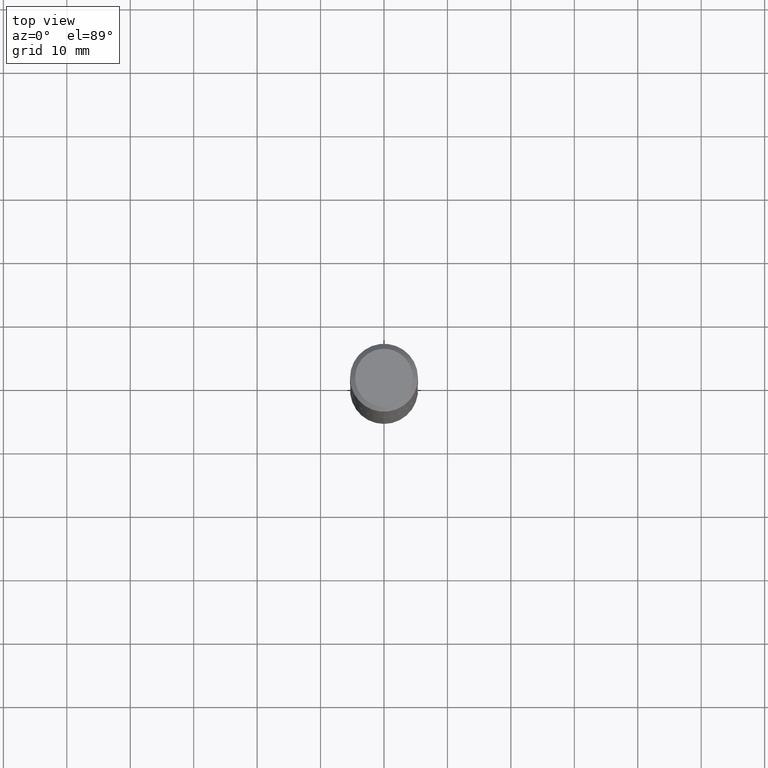
[diagram: clean part render]
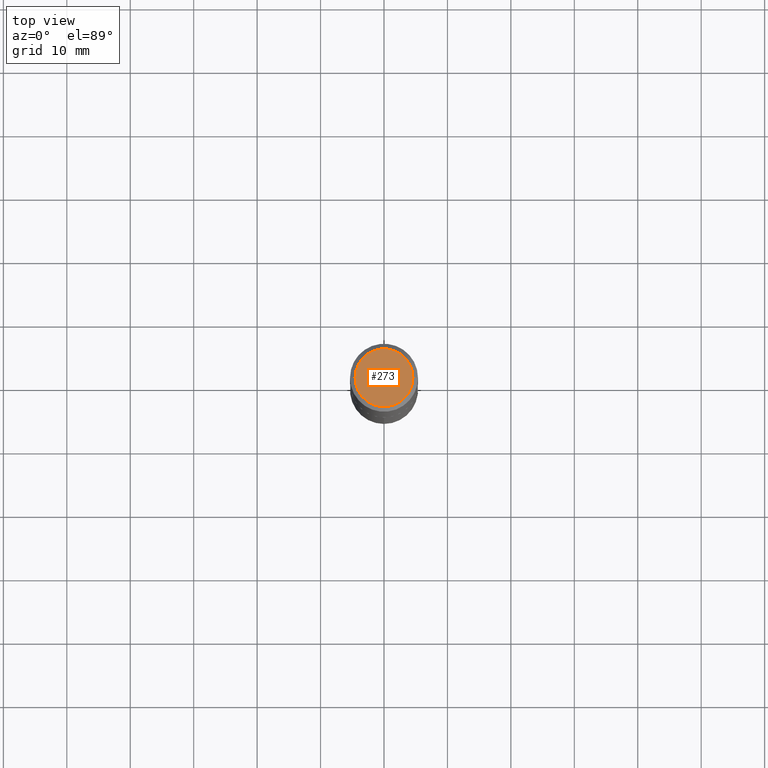
[diagram: same view with one face highlighted and labeled with its STEP entity id]
A machine part, top view. The second image highlights one B-rep face of the part: STEP entity #273.
In plain terms, the highlighted planar face has unit normal (0, -0, -1).
Its self-contained STEP definition (entity closure, byte-faithful):
#18 = ORIENTED_EDGE ( 'NONE', *, *, #70, .T. ) ;
#24 = DIRECTION ( 'NONE',  ( 1.000000000000000000, -6.982962677686265922E-15, 4.876199800713087836E-29 ) ) ;
#30 = AXIS2_PLACEMENT_3D ( 'NONE', #191, #382, #24 ) ;
#34 = EDGE_CURVE ( 'NONE', #48, #248, #62, .T. ) ;
#48 = VERTEX_POINT ( 'NONE', #279 ) ;
#60 = DIRECTION ( 'NONE',  ( -2.445468806185136597E-29, 3.491481338843145583E-15, 1.000000000000000000 ) ) ;
#62 = CIRCLE ( 'NONE', #30, 0.1796999999999999986 ) ;
#65 = AXIS2_PLACEMENT_3D ( 'NONE', #327, #388, #126 ) ;
#70 = EDGE_CURVE ( 'NONE', #248, #48, #71, .T. ) ;
#71 = CIRCLE ( 'NONE', #360, 0.1796999999999999986 ) ;
#126 = DIRECTION ( 'NONE',  ( -1.000000000000000000, 6.982962677686265922E-15, -4.876176775795935793E-29 ) ) ;
#175 = CARTESIAN_POINT ( 'NONE',  ( -0.1796999999999999986, 1.309392789099645492E-15, 9.613477373217108669E-19 ) ) ;
#179 = EDGE_LOOP ( 'NONE', ( #18, #254 ) ) ;
#191 = CARTESIAN_POINT ( 'NONE',  ( -2.350945903538833148E-47, 3.356527685029141157E-33, 9.613477373306770338E-19 ) ) ;
#192 = FACE_OUTER_BOUND ( 'NONE', #179, .T. ) ;
#248 = VERTEX_POINT ( 'NONE', #175 ) ;
#254 = ORIENTED_EDGE ( 'NONE', *, *, #34, .T. ) ;
#273 = ADVANCED_FACE ( 'NONE', ( #192 ), #303, .F. ) ;
#279 = CARTESIAN_POINT ( 'NONE',  ( 0.1796999999999999986, -1.394581167334149153E-15, 9.613477373399407568E-19 ) ) ;
#303 = PLANE ( 'NONE',  #65 ) ;
#326 = CARTESIAN_POINT ( 'NONE',  ( -2.350945903538833148E-47, 3.356527685029141157E-33, 9.613477373306770338E-19 ) ) ;
#327 = CARTESIAN_POINT ( 'NONE',  ( -1.175472951769416574E-47, 1.678263842514570579E-33, 4.806738686653385169E-19 ) ) ;
#360 = AXIS2_PLACEMENT_3D ( 'NONE', #326, #60, #390 ) ;
#382 = DIRECTION ( 'NONE',  ( -2.445468806185136597E-29, 3.491481338843145583E-15, 1.000000000000000000 ) ) ;
#388 = DIRECTION ( 'NONE',  ( 2.438088387897960049E-29, -3.491481338843145188E-15, -1.000000000000000000 ) ) ;
#390 = DIRECTION ( 'NONE',  ( 1.000000000000000000, -6.982962677686265922E-15, 4.876199800713087836E-29 ) ) ;